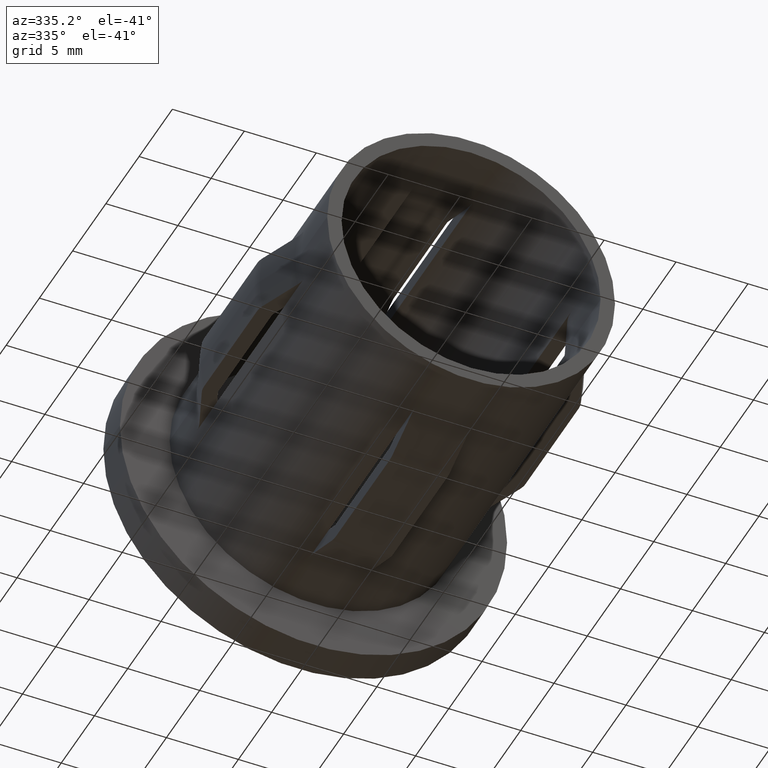
[diagram: clean part render]
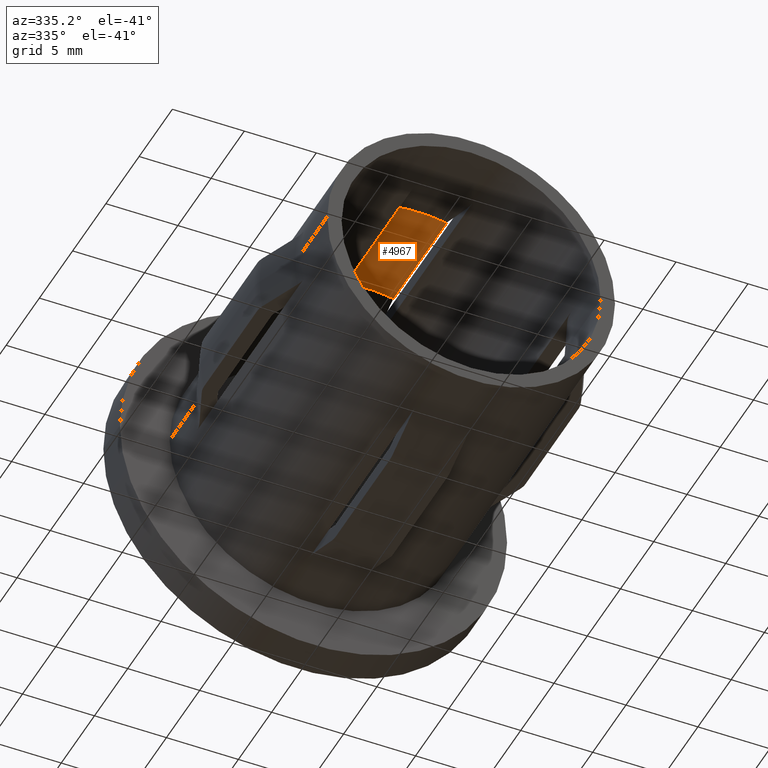
[diagram: same view with one face highlighted and labeled with its STEP entity id]
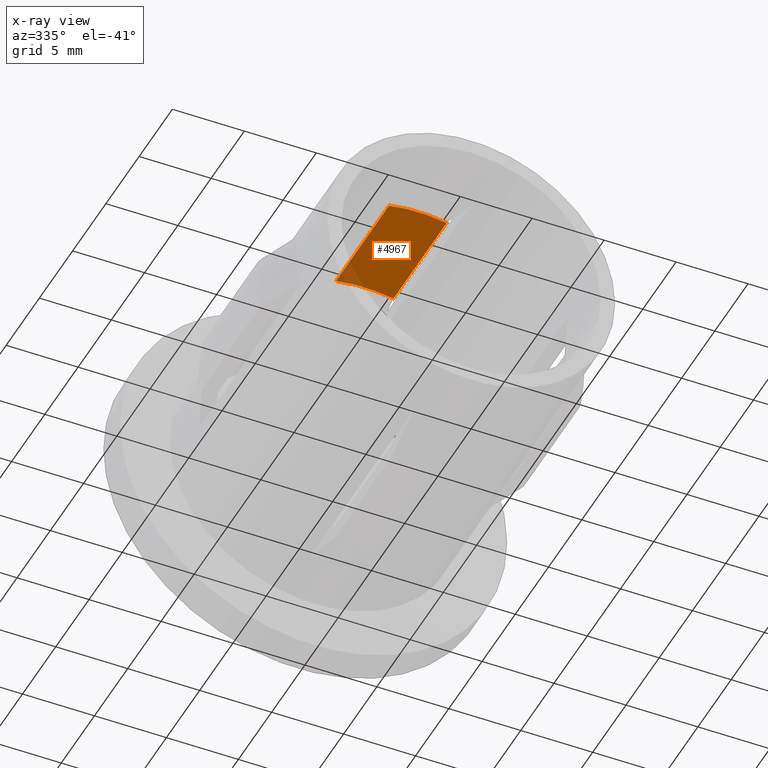
[diagram: x-ray of the same camera — body ghosted, the highlighted face saturated]
A machine part, auxiliary view. The second image highlights one B-rep face of the part: STEP entity #4967.
The next image is the same camera in x-ray: the body ghosted, the highlighted face saturated — about 6% of this face is hidden behind the body in this view.
In plain terms, the highlighted cylindrical surface (partial cylindrical patch) has radius 10.35 mm, axis along (0, 1, -0).
Its self-contained STEP definition (entity closure, byte-faithful):
#548 = DIRECTION ( 'NONE',  ( 7.347880794884120229E-17, 1.000000000000000000, -0.000000000000000000 ) ) ;
#846 = VERTEX_POINT ( 'NONE', #5163 ) ;
#1169 = DIRECTION ( 'NONE',  ( -7.347880794884120229E-17, -1.000000000000000000, 0.000000000000000000 ) ) ;
#2730 = CARTESIAN_POINT ( 'NONE',  ( -1.999999999999997113, 16.00000000000000000, 10.15492491355795224 ) ) ;
#2804 = CARTESIAN_POINT ( 'NONE',  ( 2.000000000000002220, 7.999999999999996447, 10.15492491355795401 ) ) ;
#2814 = DIRECTION ( 'NONE',  ( 7.347880794884120229E-17, 1.000000000000000000, -0.000000000000000000 ) ) ;
#3714 = CARTESIAN_POINT ( 'NONE',  ( -3.820898013339737983E-16, 16.00000000000000000, 0.000000000000000000 ) ) ;
#4646 = EDGE_CURVE ( 'NONE', #846, #9905, #7137, .T. ) ;
#4967 = ADVANCED_FACE ( 'NONE', ( #10494 ), #14040, .F. ) ;
#4982 = DIRECTION ( 'NONE',  ( -1.000000000000000000, 0.000000000000000000, 0.000000000000000000 ) ) ;
#5163 = CARTESIAN_POINT ( 'NONE',  ( 2.000000000000003553, 16.00000000000000000, 10.15492491355795224 ) ) ;
#5207 = VECTOR ( 'NONE', #13037, 1000.000000000000000 ) ;
#5940 = EDGE_CURVE ( 'NONE', #6148, #11788, #10468, .T. ) ;
#6057 = CIRCLE ( 'NONE', #9713, 10.35000000000000142 ) ;
#6148 = VERTEX_POINT ( 'NONE', #2730 ) ;
#7058 = CARTESIAN_POINT ( 'NONE',  ( 3.673940397442062826E-16, 26.19999999999999929, 0.000000000000000000 ) ) ;
#7113 = CARTESIAN_POINT ( 'NONE',  ( -9.699202649247035646E-16, 7.999999999999996447, 0.000000000000000000 ) ) ;
#7137 = LINE ( 'NONE', #14635, #10671 ) ;
#7512 = EDGE_CURVE ( 'NONE', #6148, #846, #6057, .T. ) ;
#7598 = CIRCLE ( 'NONE', #13132, 10.35000000000000320 ) ;
#9262 = ORIENTED_EDGE ( 'NONE', *, *, #9430, .F. ) ;
#9430 = EDGE_CURVE ( 'NONE', #11788, #9905, #7598, .T. ) ;
#9713 = AXIS2_PLACEMENT_3D ( 'NONE', #3714, #13855, #10590 ) ;
#9843 = CARTESIAN_POINT ( 'NONE',  ( -1.999999999999998224, 7.999999999999996447, 10.15492491355795401 ) ) ;
#9905 = VERTEX_POINT ( 'NONE', #2804 ) ;
#10468 = LINE ( 'NONE', #12691, #5207 ) ;
#10491 = ORIENTED_EDGE ( 'NONE', *, *, #4646, .T. ) ;
#10494 = FACE_OUTER_BOUND ( 'NONE', #11938, .T. ) ;
#10590 = DIRECTION ( 'NONE',  ( -1.000000000000000000, 0.000000000000000000, 0.000000000000000000 ) ) ;
#10671 = VECTOR ( 'NONE', #1169, 1000.000000000000000 ) ;
#10754 = ORIENTED_EDGE ( 'NONE', *, *, #7512, .T. ) ;
#11247 = ORIENTED_EDGE ( 'NONE', *, *, #5940, .F. ) ;
#11631 = DIRECTION ( 'NONE',  ( -1.000000000000000000, 0.000000000000000000, 0.000000000000000000 ) ) ;
#11788 = VERTEX_POINT ( 'NONE', #9843 ) ;
#11938 = EDGE_LOOP ( 'NONE', ( #11247, #10754, #10491, #9262 ) ) ;
#12691 = CARTESIAN_POINT ( 'NONE',  ( -1.999999999999997113, 26.19999999999999929, 10.15492491355795401 ) ) ;
#13037 = DIRECTION ( 'NONE',  ( -7.347880794884120229E-17, -1.000000000000000000, 0.000000000000000000 ) ) ;
#13132 = AXIS2_PLACEMENT_3D ( 'NONE', #7113, #548, #4982 ) ;
#13855 = DIRECTION ( 'NONE',  ( 7.347880794884120229E-17, 1.000000000000000000, -0.000000000000000000 ) ) ;
#14040 = CYLINDRICAL_SURFACE ( 'NONE', #14649, 10.35000000000000142 ) ;
#14635 = CARTESIAN_POINT ( 'NONE',  ( 2.000000000000003553, 26.19999999999999929, 10.15492491355795401 ) ) ;
#14649 = AXIS2_PLACEMENT_3D ( 'NONE', #7058, #2814, #11631 ) ;